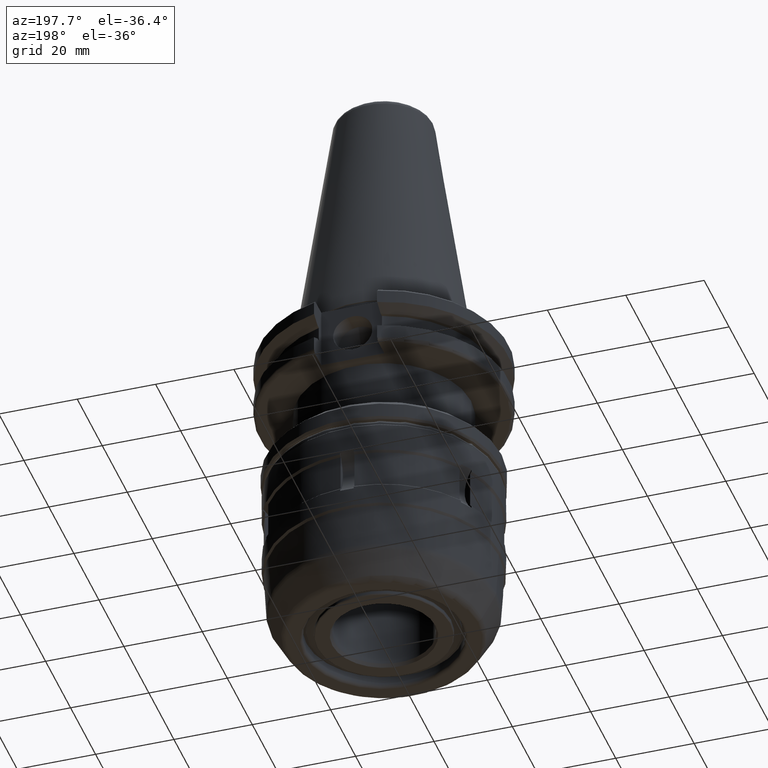
[diagram: clean part render]
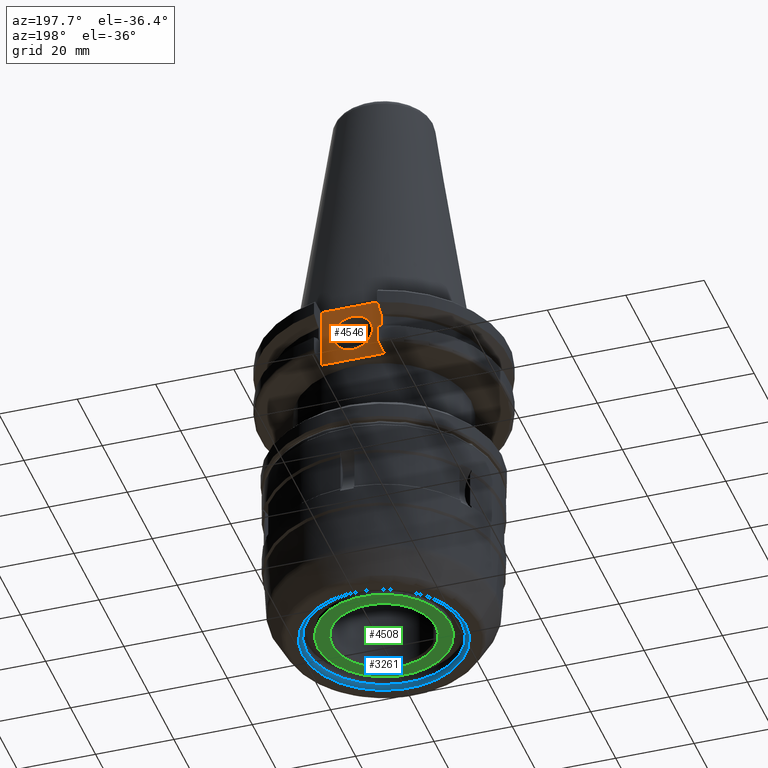
[diagram: same view with three faces highlighted in distinct colors, each labeled with its STEP entity id]
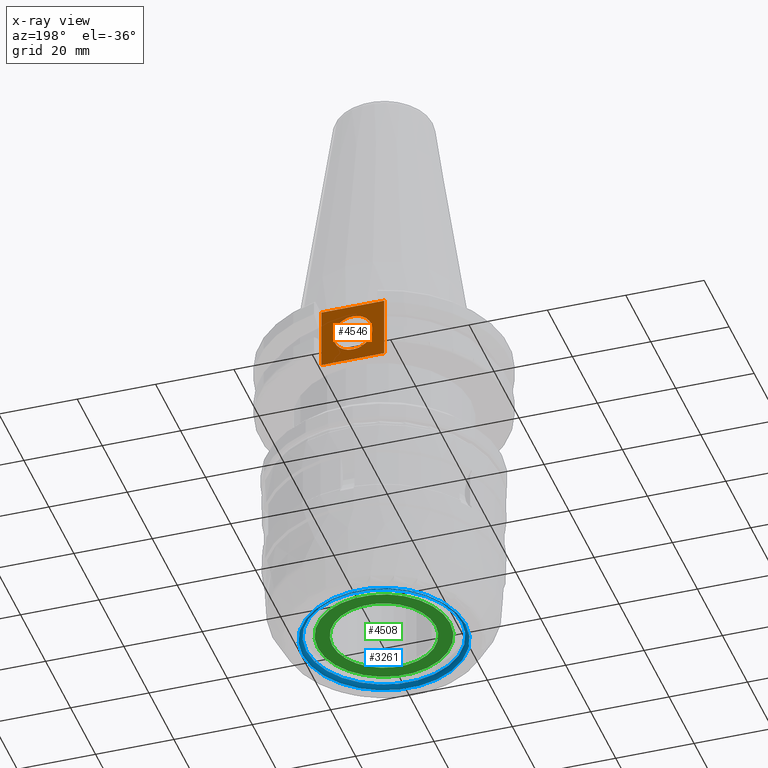
[diagram: x-ray of the same camera — body ghosted, the three highlighted faces saturated]
A machine part, auxiliary view with three faces highlighted in distinct colors.
The next image is the same camera in x-ray (body ghosted, the three faces saturated) — at least one of them is partly hidden behind the body in this view.
Their STEP definitions:

[orange] entity #4546 — the highlighted planar face has unit normal (0, -1, 0).
#60 = VERTEX_POINT ( 'NONE', #553 ) ;
#227 = EDGE_LOOP ( 'NONE', ( #1506, #1444, #3821, #3474 ) ) ;
#423 = AXIS2_PLACEMENT_3D ( 'NONE', #1843, #2919, #1488 ) ;
#493 = CARTESIAN_POINT ( 'NONE',  ( 8.049999999999998934, 25.00000000000000000, -86.20100028657400060 ) ) ;
#553 = CARTESIAN_POINT ( 'NONE',  ( -8.049999999999998934, 25.00000000000000000, -3.180000000000044125 ) ) ;
#571 = DIRECTION ( 'NONE',  ( 1.000000000000000000, 0.000000000000000000, 0.000000000000000000 ) ) ;
#702 = EDGE_CURVE ( 'NONE', #2979, #4270, #4502, .T. ) ;
#830 = DIRECTION ( 'NONE',  ( 0.000000000000000000, -1.000000000000000000, 0.000000000000000000 ) ) ;
#947 = DIRECTION ( 'NONE',  ( -0.000000000000000000, -0.000000000000000000, 1.000000000000000000 ) ) ;
#977 = CARTESIAN_POINT ( 'NONE',  ( -8.049999999999998934, 25.00000000000000000, -86.20100028657400060 ) ) ;
#1106 = CIRCLE ( 'NONE', #423, 4.999999999999987566 ) ;
#1203 = DIRECTION ( 'NONE',  ( 0.000000000000000000, -0.000000000000000000, -1.000000000000000000 ) ) ;
#1444 = ORIENTED_EDGE ( 'NONE', *, *, #3624, .T. ) ;
#1488 = DIRECTION ( 'NONE',  ( 0.000000000000000000, 0.000000000000000000, 1.000000000000000000 ) ) ;
#1506 = ORIENTED_EDGE ( 'NONE', *, *, #3727, .T. ) ;
#1538 = PLANE ( 'NONE',  #3879 ) ;
#1547 = CARTESIAN_POINT ( 'NONE',  ( -8.049999999999998934, 25.00000000000000000, -3.180000000000016147 ) ) ;
#1667 = EDGE_CURVE ( 'NONE', #60, #4270, #3341, .T. ) ;
#1843 = CARTESIAN_POINT ( 'NONE',  ( 0.000000000000000000, 25.00000000000000000, -11.09999999999999964 ) ) ;
#1901 = VERTEX_POINT ( 'NONE', #2611 ) ;
#2249 = VERTEX_POINT ( 'NONE', #3334 ) ;
#2267 = VECTOR ( 'NONE', #571, 1000.000000000000000 ) ;
#2302 = LINE ( 'NONE', #4146, #2627 ) ;
#2564 = VECTOR ( 'NONE', #947, 1000.000000000000000 ) ;
#2611 = CARTESIAN_POINT ( 'NONE',  ( 0.000000000000000000, 25.00000000000000000, -6.100000000000012967 ) ) ;
#2627 = VECTOR ( 'NONE', #3032, 1000.000000000000000 ) ;
#2672 = VECTOR ( 'NONE', #3717, 1000.000000000000000 ) ;
#2696 = CARTESIAN_POINT ( 'NONE',  ( 8.049999999999998934, 25.00000000000000000, -19.05000000000005400 ) ) ;
#2919 = DIRECTION ( 'NONE',  ( -0.000000000000000000, 1.000000000000000000, -0.000000000000000000 ) ) ;
#2979 = VERTEX_POINT ( 'NONE', #2696 ) ;
#3011 = CARTESIAN_POINT ( 'NONE',  ( -8.049999999999998934, 25.00000000000000000, -86.20100028657400060 ) ) ;
#3032 = DIRECTION ( 'NONE',  ( -1.000000000000000000, 0.000000000000000000, 0.000000000000000000 ) ) ;
#3148 = EDGE_CURVE ( 'NONE', #1901, #1901, #1106, .T. ) ;
#3263 = ORIENTED_EDGE ( 'NONE', *, *, #3148, .F. ) ;
#3276 = FACE_OUTER_BOUND ( 'NONE', #227, .T. ) ;
#3334 = CARTESIAN_POINT ( 'NONE',  ( -8.049999999999998934, 25.00000000000000000, -19.05000000000005400 ) ) ;
#3341 = LINE ( 'NONE', #1547, #2267 ) ;
#3474 = ORIENTED_EDGE ( 'NONE', *, *, #702, .F. ) ;
#3624 = EDGE_CURVE ( 'NONE', #2249, #60, #4529, .T. ) ;
#3717 = DIRECTION ( 'NONE',  ( -0.000000000000000000, -0.000000000000000000, 1.000000000000000000 ) ) ;
#3727 = EDGE_CURVE ( 'NONE', #2979, #2249, #2302, .T. ) ;
#3821 = ORIENTED_EDGE ( 'NONE', *, *, #1667, .T. ) ;
#3879 = AXIS2_PLACEMENT_3D ( 'NONE', #3011, #830, #1203 ) ;
#4013 = FACE_BOUND ( 'NONE', #4424, .T. ) ;
#4146 = CARTESIAN_POINT ( 'NONE',  ( -8.049999999999998934, 25.00000000000000000, -19.05000000000002558 ) ) ;
#4270 = VERTEX_POINT ( 'NONE', #4486 ) ;
#4424 = EDGE_LOOP ( 'NONE', ( #3263 ) ) ;
#4486 = CARTESIAN_POINT ( 'NONE',  ( 8.049999999999998934, 25.00000000000000000, -3.180000000000016147 ) ) ;
#4502 = LINE ( 'NONE', #493, #2672 ) ;
#4529 = LINE ( 'NONE', #977, #2564 ) ;
#4546 = ADVANCED_FACE ( 'NONE', ( #4013, #3276 ), #1538, .F. ) ;

[blue] entity #3261 — the highlighted toroidal blend (fillet) surface has major radius 20.813 mm and minor (blend) radius 1 mm.
#219 = ORIENTED_EDGE ( 'NONE', *, *, #3877, .F. ) ;
#567 = DIRECTION ( 'NONE',  ( -0.000000000000000000, -0.000000000000000000, -1.000000000000000000 ) ) ;
#632 = ORIENTED_EDGE ( 'NONE', *, *, #2345, .T. ) ;
#651 = EDGE_LOOP ( 'NONE', ( #219 ) ) ;
#735 = CARTESIAN_POINT ( 'NONE',  ( 0.000000000000000000, 1.483994170672545651E-15, -85.18437993844464984 ) ) ;
#757 = CARTESIAN_POINT ( 'NONE',  ( -20.81299999999999883, 1.483994170672545651E-15, -86.20000000000004547 ) ) ;
#887 = CARTESIAN_POINT ( 'NONE',  ( -19.81312200060355977, 1.483994170672545651E-15, -85.18437993844464984 ) ) ;
#1407 = AXIS2_PLACEMENT_3D ( 'NONE', #735, #2427, #3522 ) ;
#1567 = AXIS2_PLACEMENT_3D ( 'NONE', #3664, #4380, #2598 ) ;
#1687 = CARTESIAN_POINT ( 'NONE',  ( 0.000000000000000000, 0.000000000000000000, -85.20000000000004547 ) ) ;
#1867 = VERTEX_POINT ( 'NONE', #757 ) ;
#2005 = DIRECTION ( 'NONE',  ( -1.000000000000000000, 0.000000000000000000, 0.000000000000000000 ) ) ;
#2293 = VERTEX_POINT ( 'NONE', #887 ) ;
#2330 = FACE_OUTER_BOUND ( 'NONE', #651, .T. ) ;
#2345 = EDGE_CURVE ( 'NONE', #1867, #1867, #2994, .T. ) ;
#2427 = DIRECTION ( 'NONE',  ( -0.000000000000000000, -0.000000000000000000, -1.000000000000000000 ) ) ;
#2598 = DIRECTION ( 'NONE',  ( -1.000000000000000000, 0.000000000000000000, 0.000000000000000000 ) ) ;
#2994 = CIRCLE ( 'NONE', #1567, 20.81299999999999883 ) ;
#3062 = FACE_OUTER_BOUND ( 'NONE', #3100, .T. ) ;
#3100 = EDGE_LOOP ( 'NONE', ( #632 ) ) ;
#3261 = ADVANCED_FACE ( 'NONE', ( #3062, #2330 ), #3729, .T. ) ;
#3274 = CIRCLE ( 'NONE', #1407, 19.81312200060355977 ) ;
#3522 = DIRECTION ( 'NONE',  ( -1.000000000000000000, 0.000000000000000000, 0.000000000000000000 ) ) ;
#3664 = CARTESIAN_POINT ( 'NONE',  ( 0.000000000000000000, 1.483994170672545651E-15, -86.20000000000004547 ) ) ;
#3729 = TOROIDAL_SURFACE ( 'NONE', #4191, 20.81299999999999883, 1.000000000000004441 ) ;
#3877 = EDGE_CURVE ( 'NONE', #2293, #2293, #3274, .T. ) ;
#4191 = AXIS2_PLACEMENT_3D ( 'NONE', #1687, #567, #2005 ) ;
#4380 = DIRECTION ( 'NONE',  ( -0.000000000000000000, -0.000000000000000000, -1.000000000000000000 ) ) ;

[green] entity #4508 — the highlighted planar face has unit normal (0, 0, 1).
#88 = VERTEX_POINT ( 'NONE', #404 ) ;
#127 = AXIS2_PLACEMENT_3D ( 'NONE', #3720, #2640, #874 ) ;
#280 = ORIENTED_EDGE ( 'NONE', *, *, #2020, .T. ) ;
#404 = CARTESIAN_POINT ( 'NONE',  ( -13.19999999999999396, 1.483994170672545651E-15, -85.00000000000000000 ) ) ;
#576 = ORIENTED_EDGE ( 'NONE', *, *, #2277, .F. ) ;
#634 = DIRECTION ( 'NONE',  ( -0.000000000000000000, -0.000000000000000000, -1.000000000000000000 ) ) ;
#661 = DIRECTION ( 'NONE',  ( -1.000000000000000000, 0.000000000000000000, 0.000000000000000000 ) ) ;
#874 = DIRECTION ( 'NONE',  ( -1.000000000000000000, 0.000000000000000000, 0.000000000000000000 ) ) ;
#1125 = CIRCLE ( 'NONE', #1639, 16.89999999999999858 ) ;
#1639 = AXIS2_PLACEMENT_3D ( 'NONE', #3518, #634, #661 ) ;
#1710 = EDGE_LOOP ( 'NONE', ( #280 ) ) ;
#2020 = EDGE_CURVE ( 'NONE', #3919, #3919, #1125, .T. ) ;
#2090 = AXIS2_PLACEMENT_3D ( 'NONE', #4416, #2656, #3640 ) ;
#2145 = CARTESIAN_POINT ( 'NONE',  ( -16.89999999999999858, 1.483994170672545651E-15, -85.00000000000000000 ) ) ;
#2277 = EDGE_CURVE ( 'NONE', #88, #88, #3510, .T. ) ;
#2616 = PLANE ( 'NONE',  #2090 ) ;
#2640 = DIRECTION ( 'NONE',  ( -0.000000000000000000, -0.000000000000000000, -1.000000000000000000 ) ) ;
#2656 = DIRECTION ( 'NONE',  ( 0.000000000000000000, 0.000000000000000000, 1.000000000000000000 ) ) ;
#3313 = FACE_OUTER_BOUND ( 'NONE', #1710, .T. ) ;
#3491 = EDGE_LOOP ( 'NONE', ( #576 ) ) ;
#3510 = CIRCLE ( 'NONE', #127, 13.19999999999999396 ) ;
#3518 = CARTESIAN_POINT ( 'NONE',  ( 0.000000000000000000, 1.483994170672545651E-15, -85.00000000000000000 ) ) ;
#3640 = DIRECTION ( 'NONE',  ( 1.000000000000000000, 0.000000000000000000, -0.000000000000000000 ) ) ;
#3661 = FACE_BOUND ( 'NONE', #3491, .T. ) ;
#3720 = CARTESIAN_POINT ( 'NONE',  ( 0.000000000000000000, 1.483994170672545651E-15, -85.00000000000000000 ) ) ;
#3919 = VERTEX_POINT ( 'NONE', #2145 ) ;
#4416 = CARTESIAN_POINT ( 'NONE',  ( 0.000000000000000000, 0.000000000000000000, -85.00000000000000000 ) ) ;
#4508 = ADVANCED_FACE ( 'NONE', ( #3661, #3313 ), #2616, .F. ) ;